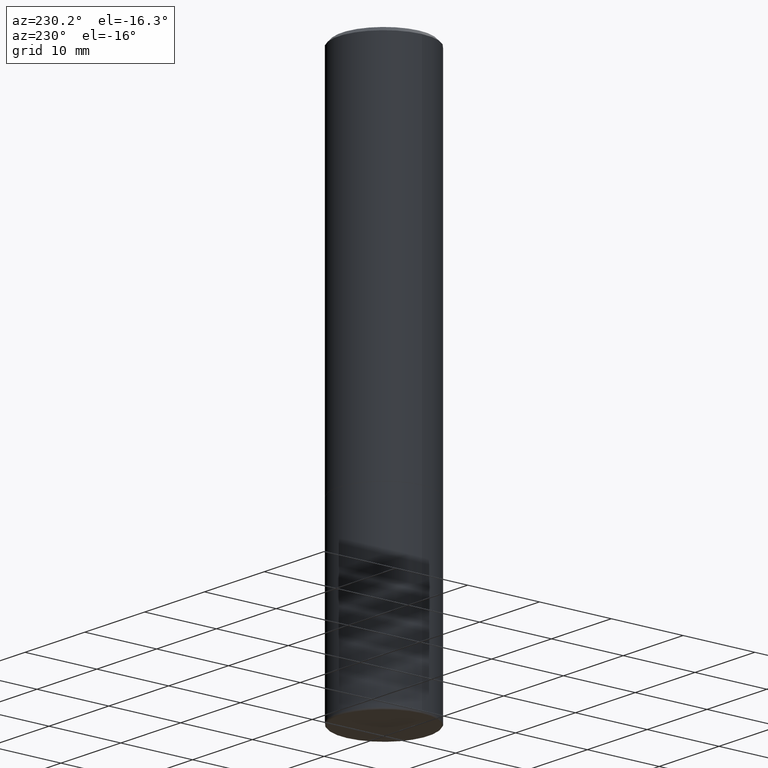
[diagram: clean part render]
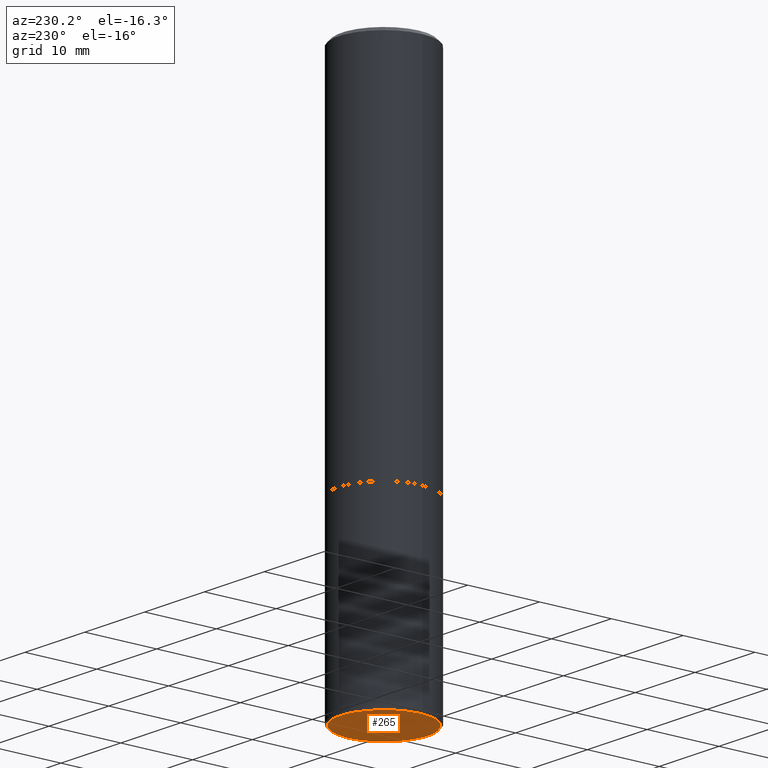
[diagram: same view with one face highlighted and labeled with its STEP entity id]
A machine part, auxiliary view. The second image highlights one B-rep face of the part: STEP entity #265.
In plain terms, the highlighted planar face has unit normal (0, -0, -1).
Its self-contained STEP definition (entity closure, byte-faithful):
#5 = AXIS2_PLACEMENT_3D ( 'NONE', #407, #240, #339 ) ;
#7 = VERTEX_POINT ( 'NONE', #384 ) ;
#54 = DIRECTION ( 'NONE',  ( -2.445468806185136597E-29, 3.491481338843145583E-15, 1.000000000000000000 ) ) ;
#78 = CARTESIAN_POINT ( 'NONE',  ( 7.336406418555408669E-29, -1.047444401652943478E-14, -2.999999999999999556 ) ) ;
#135 = FACE_OUTER_BOUND ( 'NONE', #325, .T. ) ;
#143 = ORIENTED_EDGE ( 'NONE', *, *, #187, .F. ) ;
#156 = AXIS2_PLACEMENT_3D ( 'NONE', #369, #193, #398 ) ;
#167 = VERTEX_POINT ( 'NONE', #198 ) ;
#177 = PLANE ( 'NONE',  #5 ) ;
#187 = EDGE_CURVE ( 'NONE', #7, #167, #361, .T. ) ;
#193 = DIRECTION ( 'NONE',  ( -2.445468806185136597E-29, 3.491481338843145583E-15, 1.000000000000000000 ) ) ;
#198 = CARTESIAN_POINT ( 'NONE',  ( -0.2400000000000000466, -8.716156907222976683E-15, -2.999999999999999556 ) ) ;
#199 = ORIENTED_EDGE ( 'NONE', *, *, #357, .F. ) ;
#240 = DIRECTION ( 'NONE',  ( 2.438088387897960049E-29, -3.491481338843145188E-15, -1.000000000000000000 ) ) ;
#265 = ADVANCED_FACE ( 'NONE', ( #135 ), #177, .T. ) ;
#325 = EDGE_LOOP ( 'NONE', ( #143, #199 ) ) ;
#339 = DIRECTION ( 'NONE',  ( -1.000000000000000000, 6.982962677686265922E-15, -4.876176775795935793E-29 ) ) ;
#343 = AXIS2_PLACEMENT_3D ( 'NONE', #78, #54, #410 ) ;
#357 = EDGE_CURVE ( 'NONE', #167, #7, #358, .T. ) ;
#358 = CIRCLE ( 'NONE', #343, 0.2400000000000000466 ) ;
#361 = CIRCLE ( 'NONE', #156, 0.2400000000000000466 ) ;
#369 = CARTESIAN_POINT ( 'NONE',  ( 7.336406418555408669E-29, -1.047444401652943478E-14, -2.999999999999999556 ) ) ;
#384 = CARTESIAN_POINT ( 'NONE',  ( 0.2400000000000000466, -1.215035505917413973E-14, -2.999999999999999556 ) ) ;
#398 = DIRECTION ( 'NONE',  ( 1.000000000000000000, -6.982962677686266711E-15, 0.000000000000000000 ) ) ;
#407 = CARTESIAN_POINT ( 'NONE',  ( 1.210550456377282398E-28, -3.644824032368776532E-15, -2.999999999999999556 ) ) ;
#410 = DIRECTION ( 'NONE',  ( 1.000000000000000000, -6.982962677686266711E-15, 0.000000000000000000 ) ) ;